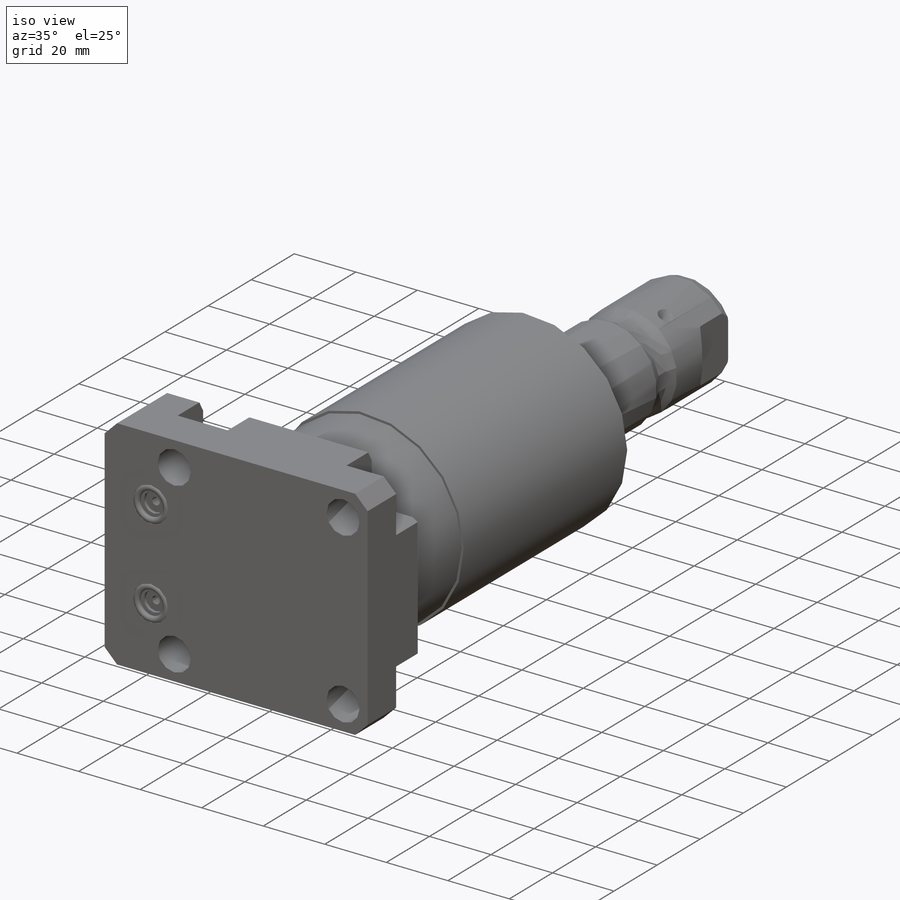
[diagram: iso view]
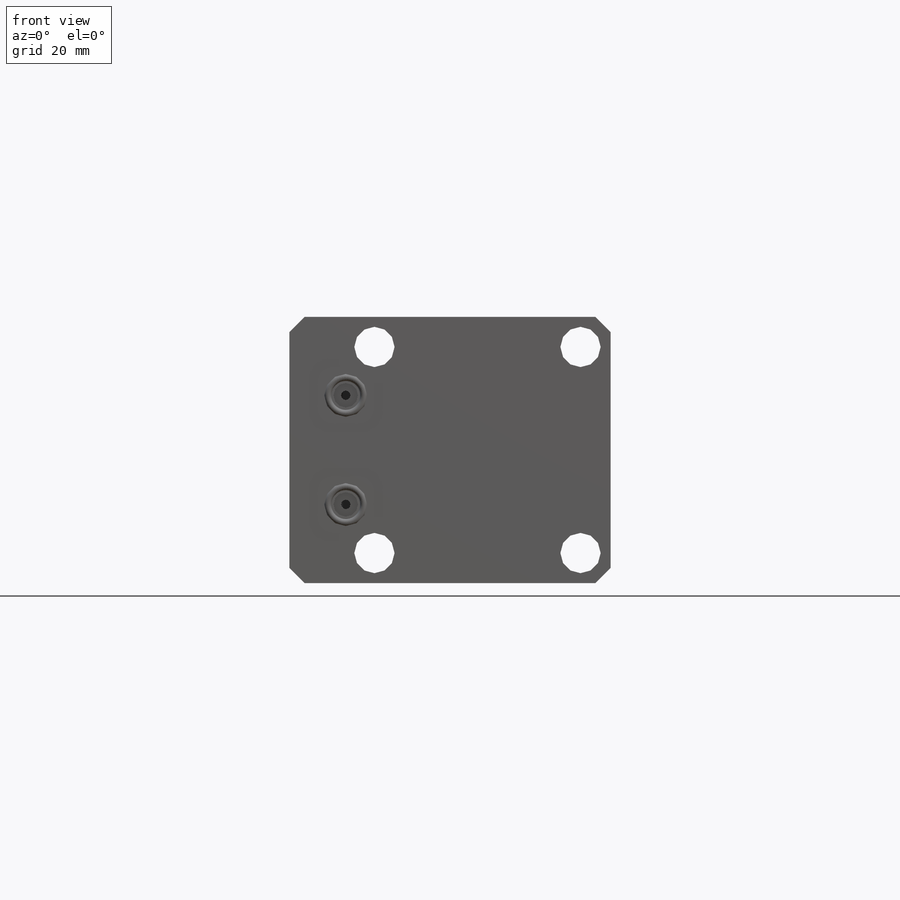
[diagram: front view]
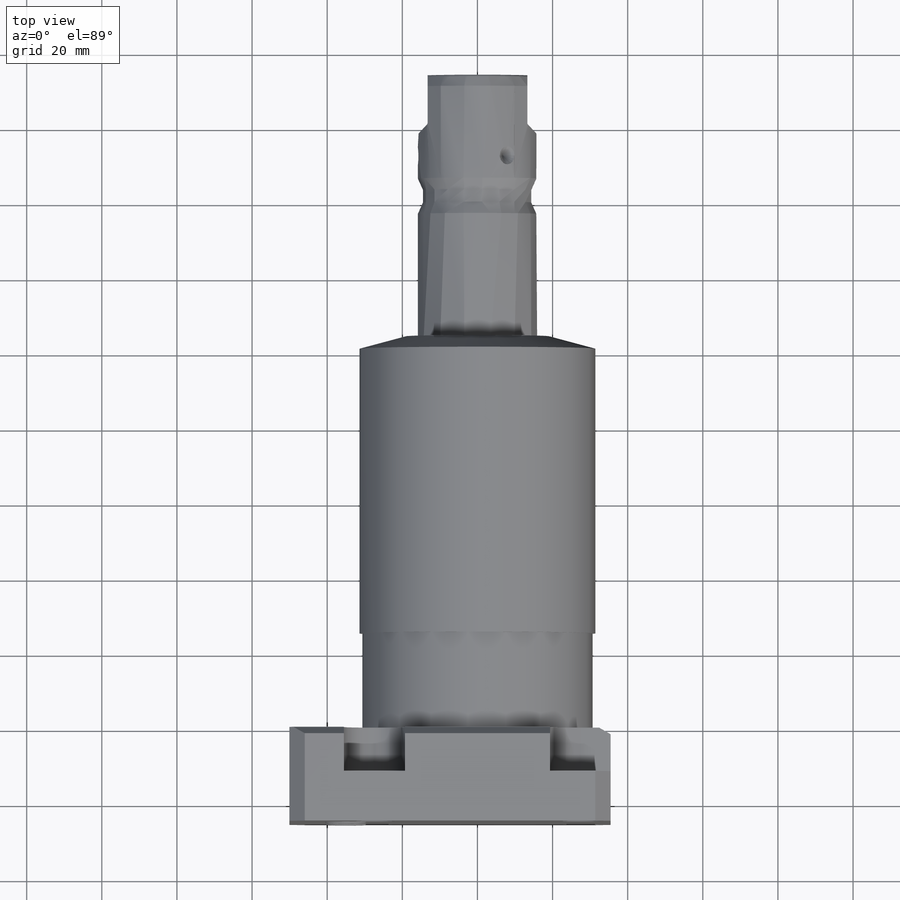
[diagram: top view]
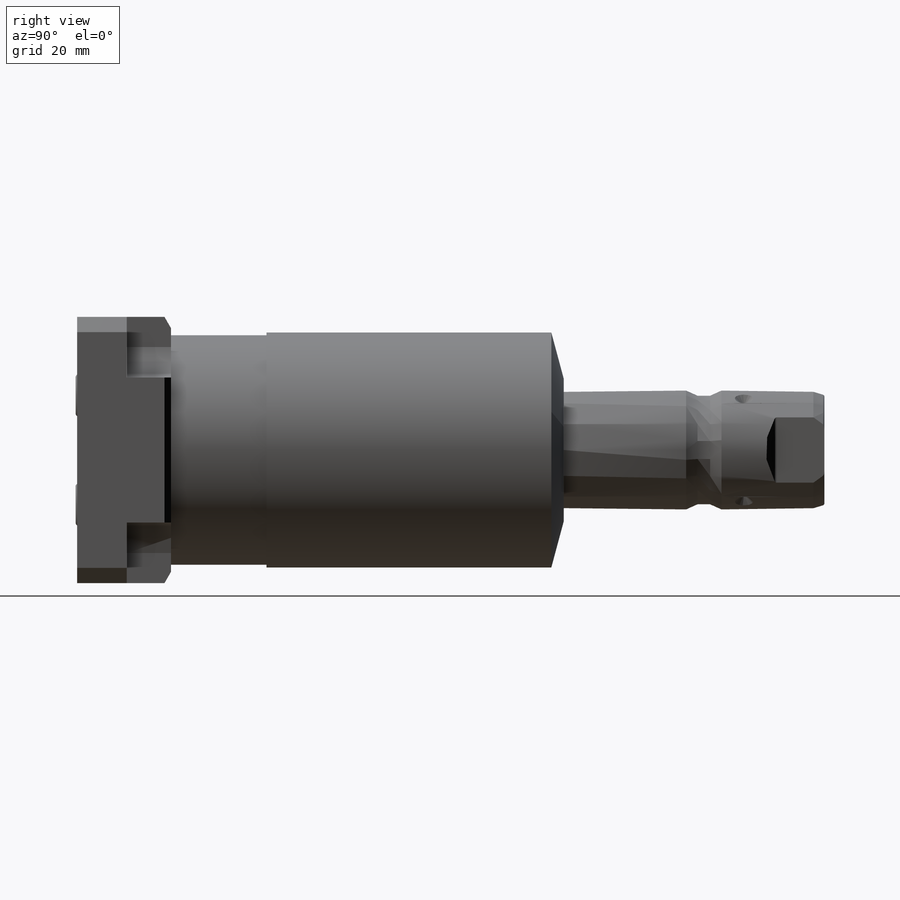
[diagram: right view]
SOLIDWORKS PART (.sldprt)
format: sldprt  version: not decoded by parser v0  size: 488,448 bytes
history: native  units: mm
features: sketch x16, plane x10, cut_extrude x7, cut_revolve x3, extrude x2, mirror x2, revolve x2, chamfer x2, material x1, pattern_linear x1, pattern_circular x1, fillet x1, hole x1 (+13 scaffold rows collapsed)
feature tree (62):
  scaffold x13  (default folders/planes/origin — collapsed)
  material  "Alloy Steel"
  plane  "Plane1"
  sketch  "Sketch1"  dims[D1=85.4964mm D2=70.866mm D3=35.433mm D4=35.433mm]
  extrude  "Extrude1"  Depth=25.019mm
  sketch  "Sketch2"  dims[D2=10.7188mm D1=27.432mm D3=27.432mm]
  cut_extrude  "Cut-Extrude1"  Depth=27.5209mm
  plane  "Plane2"
  plane  "Plane3"
  plane  "Plane4"
  plane  "Plane5"
  pattern_linear  "LPattern1"  Count1=2 Count2=2 Spacing1=54.864mm Spacing2=54.864mm
  sketch  "Sketch3"  dims[D1=8.128mm]
  cut_extrude  "Cut-Extrude2"  Depth=11.7856mm
  plane  "Plane16"  Offset=12.4968mm
  sketch  "S2D0007"  dims[c1.D1=0.254mm c1.D2=13.0048mm c1.D3=14.224mm c1.D4=9.9568mm c1.D5=20.955mm c1.D6=~0.663907mm c2.D6=45.0deg c2.D7=~2.609729mm c3.D7=12.0deg c3.D8=12.3698mm c3.D9=2.5527mm]
  cut_revolve  "Cut-Revolve1"  Angle=360deg
  mirror  "Mirror1"
  sketch  "Sketch6"  dims[D4=11.4046mm D1=14.5288mm D2=29.0576mm D3=35.0774mm]
  cut_extrude  "Cut-Extrude3"  Depth=1.4478mm
  sketch  "Sketch7"  dims[D1=6.5024mm]
  cut_extrude  "Cut-Extrude4"  Depth=1.016mm
  sketch  "Sketch8"  dims[D1=2.4892mm]
  cut_extrude  "Cut-Extrude5"  Depth=11.9888mm
  plane  "Plane17"
  sketch  "Sketch9"  dims[D1=1.8542mm D2=9.5504mm]
  revolve  "Revolve1"  Angle=360deg
  mirror  "Mirror2"
  plane  "Plane11"
  chamfer  "Chamfer1"  Distance=4.064mm Angle=45deg
  chamfer  "Chamfer2"  Distance=3.0226mm Angle=30deg
  sketch  "Sketch14"  dims[D1=62.7888mm]
  extrude  "Extrude2"  Depth=104.5464mm
  sketch  "Sketch15"  dims[D1=61.3156mm]
  cut_extrude  "Cut-Extrude9"  Depth=25.4mm
  plane  "Plane13"
  sketch  "Sketch16"  dims[c1.D1=38.1mm c1.D2=14.1224mm c2.D2=15.0deg]
  cut_revolve  "Cut-Revolve3"  Angle=360deg
  plane  "Plane14"
  sketch  "Sketch17"  dims[c1.D2=1.016mm c1.D4=7.9248mm c1.D5=7.9248mm c1.D1=198.9582mm c1.D3=31.75mm c2.D5=28.6512mm c2.D6=32.1056mm c2.D2=1.016mm c3.D2=20.0deg c3.D7=2.921mm]
  revolve  "Revolve3"  Angle=360deg
  sketch  "Sketch22"  dims[c1.D1=~7.985065mm c2.D1=45.0deg c2.D2=4.826mm c2.D3=10.668mm]
  cut_revolve  "Cut-Revolve4"  Angle=360deg
  pattern_circular  "CirPattern1"  Count=3 Angle=360deg
  fillet  "Fillet1"  Radius=0.635mm
  hole  "Hole1"  Diameter=13.8684mm Depth=21.233512mm
  sketch  "Sketch25"
  sketch  "Sketch24"  dims[c1.D1=~97.659253deg c1.D2=~82.982399deg c1.Diameter=13.8684mm c2.D2=100.0mm c2.D3=~82.982399deg c2.D4=90.0deg c3.D3=~97.716715deg c3.Depth=~21.233512mm c3.Drill Angle=118.0deg]
  sketch  "Sketch26"  dims[c1.D3=0.762mm c1.D1=~8.881321mm c2.D1=45.0deg c2.D2=26.5684mm c2.D4=12.7mm]
  cut_extrude  "Cut-Extrude12"  [1 undecoded]
decode coverage: 34 of 38 modeling features carry decoded parameters
note: ~ marks probable driven/reference dimensions
note: 1 parameter value undecoded
note: suppression state not decoded; provenance and decode notes live in map.json
